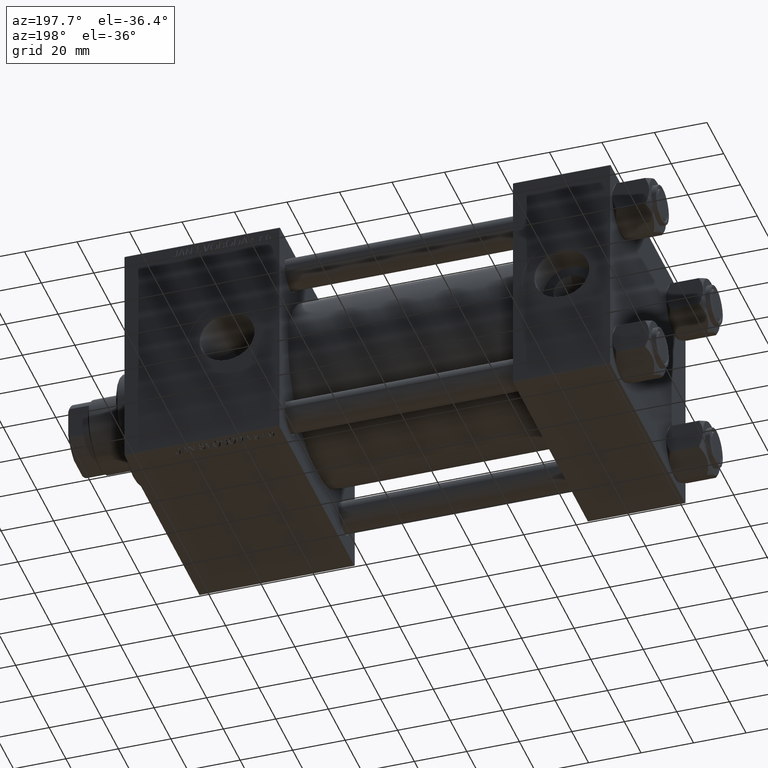
[diagram: clean part render]
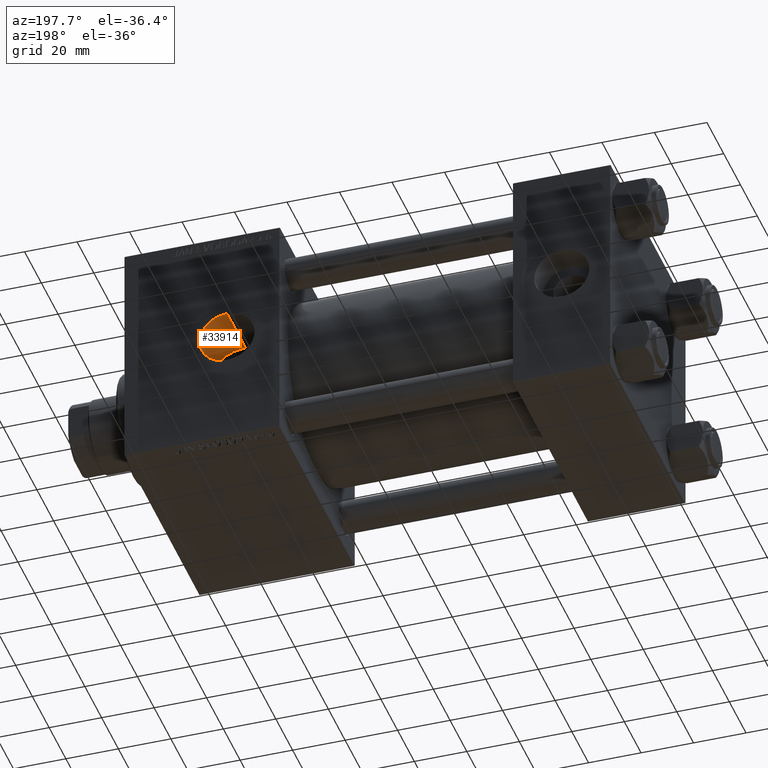
[diagram: same view with one face highlighted and labeled with its STEP entity id]
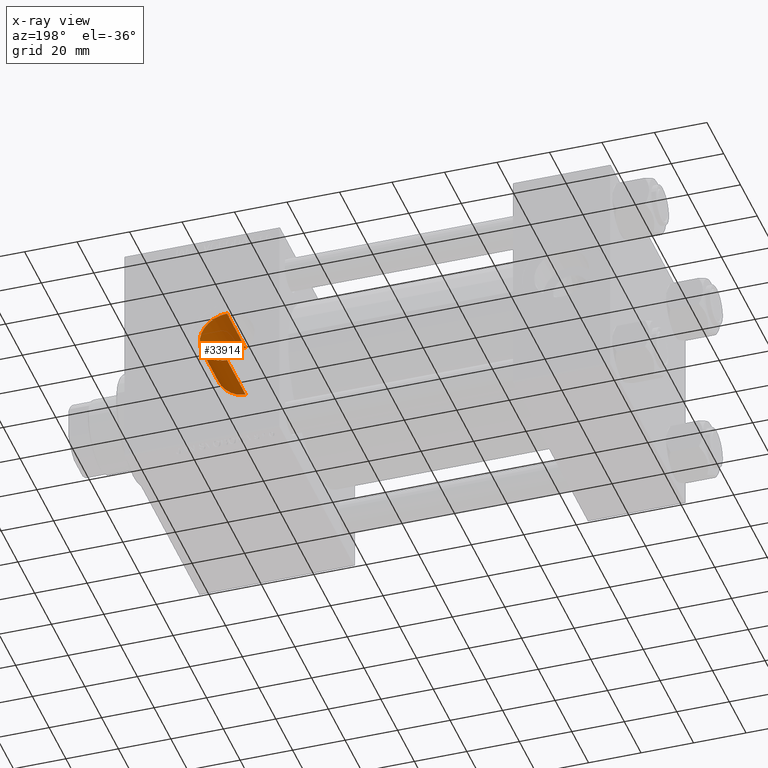
[diagram: x-ray of the same camera — body ghosted, the highlighted face saturated]
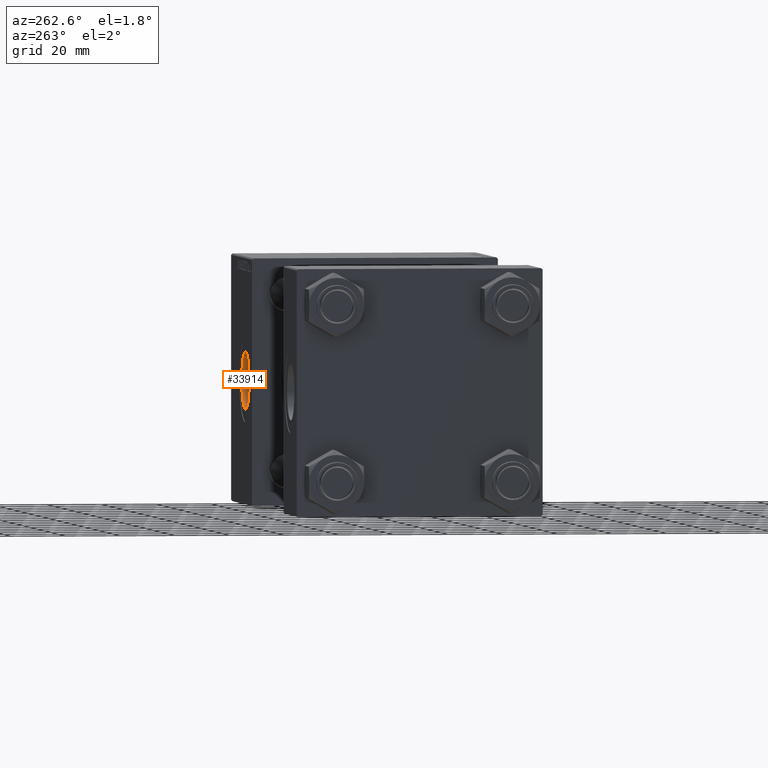
[diagram: same view with one face highlighted and labeled with its STEP entity id]
A machine part, auxiliary view. The second image highlights one B-rep face of the part: STEP entity #33914.
The next image is the same camera in x-ray: the body ghosted, the highlighted face saturated — about 0% of this face is hidden behind the body in this view.
A second angle (auxiliary view) of the same face is appended — the face is thin or edge-on in the first view.
In plain terms, the highlighted cylindrical surface (edge-blend (fillet) strip) has radius 10.48 mm, axis along (0, 1, 0).
Its self-contained STEP definition (entity closure, byte-faithful):
#666 = CARTESIAN_POINT ( 'NONE',  ( 149.0142847940010142, 22.88965506391803117, -10.05559815508268429 ) ) ;
#926 = CARTESIAN_POINT ( 'NONE',  ( 156.4210485436893805, 29.97924172559975275, -1.289340916902831147 ) ) ;
#1416 = ORIENTED_EDGE ( 'NONE', *, *, #46345, .F. ) ;
#1538 = CARTESIAN_POINT ( 'NONE',  ( 150.9753809948898038, 23.23488527341190490, 9.228541309191445663 ) ) ;
#1600 = VERTEX_POINT ( 'NONE', #31191 ) ;
#1994 = CARTESIAN_POINT ( 'NONE',  ( 146.0000000000000000, 44.80000000000000426, 10.47999999999998622 ) ) ;
#2286 = CARTESIAN_POINT ( 'NONE',  ( 154.3712186421444130, 24.18913309560350555, 6.333144320437556374 ) ) ;
#2754 = EDGE_CURVE ( 'NONE', #25891, #6803, #9377, .T. ) ;
#2822 = B_SPLINE_CURVE_WITH_KNOTS ( 'NONE', 3,
 ( #6603, #14225, #44470, #24937, #28989, #6348, #9399, #48277, #1538, #18040, #21870, #37102, #13709, #2286, #45230, #10405, #5597, #37361, #13463, #36344 ),
 .UNSPECIFIED., .F., .F.,
 ( 4, 2, 2, 2, 2, 2, 2, 2, 2, 4 ),
 ( 0.04777555843500057298, 0.04960278494382210079, 0.05143001145264363555, 0.05234362470705439946, 0.05325723796146516337, 0.05508446447028669118, 0.05691169097910821206, 0.05873891748792973294, 0.06056614399675125382, 0.06239337050557278164 ),
 .UNSPECIFIED. ) ;
#3253 = CARTESIAN_POINT ( 'NONE',  ( 156.1860373835923781, 24.87798601015179045, -2.540944180381794038 ) ) ;
#3324 = DIRECTION ( 'NONE',  ( -0.000000000000000000, 1.000000000000000000, -0.000000000000000000 ) ) ;
#3612 = DIRECTION ( 'NONE',  ( -0.000000000000000000, 1.000000000000000000, -0.000000000000000000 ) ) ;
#3923 = ORIENTED_EDGE ( 'NONE', *, *, #7619, .F. ) ;
#4479 = CARTESIAN_POINT ( 'NONE',  ( 147.5323102098026311, 22.74705995731304498, -10.37182038327441802 ) ) ;
#5597 = CARTESIAN_POINT ( 'NONE',  ( 155.5967018876781083, 24.64200291405538579, 4.254096972755011308 ) ) ;
#6348 = CARTESIAN_POINT ( 'NONE',  ( 149.8763894940811952, 23.02425611976456921, 9.741482359767376309 ) ) ;
#6387 = DIRECTION ( 'NONE',  ( 0.000000000000000000, 0.000000000000000000, 1.000000000000000000 ) ) ;
#6603 = CARTESIAN_POINT ( 'NONE',  ( 146.0000000000000000, 22.69734786269092908, 10.47999999999998622 ) ) ;
#6803 = VERTEX_POINT ( 'NONE', #1994 ) ;
#6850 = CARTESIAN_POINT ( 'NONE',  ( 146.0000000000000000, -29.64191626734002938, -10.47999999999998622 ) ) ;
#7050 = CARTESIAN_POINT ( 'NONE',  ( 156.0210743422585438, 24.81034816119848330, -3.126242148223932649 ) ) ;
#7619 = EDGE_CURVE ( 'NONE', #25891, #32924, #2822, .T. ) ;
#7684 = DIRECTION ( 'NONE',  ( 0.000000000000000000, -1.000000000000000000, 0.000000000000000000 ) ) ;
#8743 = CARTESIAN_POINT ( 'NONE',  ( 146.0000000000000000, 44.80000000000000426, 0.000000000000000000 ) ) ;
#8765 = CARTESIAN_POINT ( 'NONE',  ( 150.9708057090665250, 23.23390972285158185, -9.230989781872743549 ) ) ;
#8780 = CARTESIAN_POINT ( 'NONE',  ( 156.2999999999999829, 29.93759509379469819, -1.934011375354246276 ) ) ;
#9377 = LINE ( 'NONE', #16521, #34046 ) ;
#9399 = CARTESIAN_POINT ( 'NONE',  ( 150.1594229704400050, 23.07374768723454395, 9.623999275545168430 ) ) ;
#9587 = AXIS2_PLACEMENT_3D ( 'NONE', #8743, #43577, #28346 ) ;
#10375 = VERTEX_POINT ( 'NONE', #18363 ) ;
#10405 = CARTESIAN_POINT ( 'NONE',  ( 155.3365885758777267, 24.54097123568320882, 4.798722814978416906 ) ) ;
#10706 = CARTESIAN_POINT ( 'NONE',  ( 146.0000000000000000, -29.64191626734002938, 0.000000000000000000 ) ) ;
#11527 = VERTEX_POINT ( 'NONE', #49090 ) ;
#11764 = CARTESIAN_POINT ( 'NONE',  ( 146.0000000000000000, 22.69734786269092908, 10.47999999999998622 ) ) ;
#12098 = CARTESIAN_POINT ( 'NONE',  ( 146.6184503203334089, 22.70371650711280154, -10.46623830854439596 ) ) ;
#13082 = CARTESIAN_POINT ( 'NONE',  ( 147.2299806015979300, 22.72859684883632525, -10.41209742797557603 ) ) ;
#13456 = DIRECTION ( 'NONE',  ( -0.000000000000000000, 1.000000000000000000, -0.000000000000000000 ) ) ;
#13463 = CARTESIAN_POINT ( 'NONE',  ( 156.1860905014694936, 24.87800796049819851, 2.540661289525187883 ) ) ;
#13709 = CARTESIAN_POINT ( 'NONE',  ( 153.5987668480131276, 23.93278328930207977, 7.241875511745201166 ) ) ;
#14225 = CARTESIAN_POINT ( 'NONE',  ( 146.6110601447643944, 22.69734786269092552, 10.47999999999998622 ) ) ;
#14936 = CARTESIAN_POINT ( 'NONE',  ( 154.7165790327873651, 24.31185381307016158, -5.849757798485074822 ) ) ;
#15258 = CARTESIAN_POINT ( 'NONE',  ( 156.2999999999999829, -29.64191626734002938, -1.934011375354246276 ) ) ;
#16161 = CARTESIAN_POINT ( 'NONE',  ( 146.3076896963079605, 22.69734786269091131, -10.47999999999998799 ) ) ;
#16516 = ORIENTED_EDGE ( 'NONE', *, *, #2754, .T. ) ;
#16521 = CARTESIAN_POINT ( 'NONE',  ( 146.0000000000000000, -29.64191626734002938, 10.47999999999998622 ) ) ;
#16665 = CARTESIAN_POINT ( 'NONE',  ( 153.5841984343152262, 23.93007535684159848, -7.238810305119394606 ) ) ;
#17134 = CARTESIAN_POINT ( 'NONE',  ( 156.2999999999999829, 29.93759509379469819, -1.934011375354246276 ) ) ;
#18040 = CARTESIAN_POINT ( 'NONE',  ( 151.7549989371403569, 23.41010728859863477, 8.778972046462296674 ) ) ;
#18363 = CARTESIAN_POINT ( 'NONE',  ( 145.9999999999999432, 22.69734786269093618, -10.48000000000000043 ) ) ;
#18936 = VERTEX_POINT ( 'NONE', #17134 ) ;
#20072 = CARTESIAN_POINT ( 'NONE',  ( 156.2999999999999829, 24.92507973909011554, 1.934011375354246276 ) ) ;
#20726 = CARTESIAN_POINT ( 'NONE',  ( 150.7040979107195255, 23.17812935793411455, -9.369815470830934245 ) ) ;
#21045 = CARTESIAN_POINT ( 'NONE',  ( 156.2999999999999829, -29.64191626734002938, 1.934011375354246276 ) ) ;
#21253 = CARTESIAN_POINT ( 'NONE',  ( 156.2999999999999829, 29.93759509379469819, 1.934011375354246276 ) ) ;
#21357 = LINE ( 'NONE', #6850, #34324 ) ;
#21870 = CARTESIAN_POINT ( 'NONE',  ( 152.2463736098319487, 23.53697641551143604, 8.436658862434475381 ) ) ;
#22566 = CARTESIAN_POINT ( 'NONE',  ( 155.7018873513318340, 24.68373309296300633, -3.974293906804986509 ) ) ;
#24061 = CARTESIAN_POINT ( 'NONE',  ( 153.1575839127999927, 23.79830767432467908, -7.660902887767198521 ) ) ;
#24310 = CARTESIAN_POINT ( 'NONE',  ( 152.9332077102124572, 23.73162063118218867, -7.864568902139592588 ) ) ;
#24815 = CARTESIAN_POINT ( 'NONE',  ( 145.9999999999999432, 22.69734786269093618, -10.48000000000000043 ) ) ;
#24937 = CARTESIAN_POINT ( 'NONE',  ( 148.4335631959205273, 22.81958359536423586, 10.21177388410807652 ) ) ;
#25356 = EDGE_CURVE ( 'NONE', #11527, #18936, #40741, .T. ) ;
#25869 = ORIENTED_EDGE ( 'NONE', *, *, #47633, .F. ) ;
#25891 = VERTEX_POINT ( 'NONE', #11764 ) ;
#26650 = CARTESIAN_POINT ( 'NONE',  ( 155.1791453405796801, 24.48276497113433692, -5.066132143998561155 ) ) ;
#27386 = ORIENTED_EDGE ( 'NONE', *, *, #34604, .T. ) ;
#28346 = DIRECTION ( 'NONE',  ( 0.000000000000000000, 0.000000000000000000, 1.000000000000000000 ) ) ;
#28989 = CARTESIAN_POINT ( 'NONE',  ( 149.0193213176865754, 22.89033417524106184, 10.05405366419393509 ) ) ;
#29878 = ORIENTED_EDGE ( 'NONE', *, *, #25356, .F. ) ;
#31191 = CARTESIAN_POINT ( 'NONE',  ( 156.2999999999999829, 24.92507973909011554, -1.934011375354246276 ) ) ;
#31679 = CARTESIAN_POINT ( 'NONE',  ( 149.8722702370924651, 23.02355914754543775, -9.743129116453783212 ) ) ;
#31927 = CARTESIAN_POINT ( 'NONE',  ( 150.1555850499988765, 23.07305854210198603, -9.625647614747022018 ) ) ;
#32924 = VERTEX_POINT ( 'NONE', #20072 ) ;
#33842 = FACE_OUTER_BOUND ( 'NONE', #50094, .T. ) ;
#33914 = ADVANCED_FACE ( 'NONE', ( #33842 ), #41462, .F. ) ;
#33957 = CIRCLE ( 'NONE', #9587, 10.47999999999998622 ) ;
#34046 = VECTOR ( 'NONE', #36322, 1000.000000000000000 ) ;
#34324 = VECTOR ( 'NONE', #13456, 1000.000000000000000 ) ;
#34604 = EDGE_CURVE ( 'NONE', #6803, #42162, #33957, .T. ) ;
#34748 = CARTESIAN_POINT ( 'NONE',  ( 156.2999999999999829, 24.92507973909011554, -1.934011375354246276 ) ) ;
#35974 = CARTESIAN_POINT ( 'NONE',  ( 152.2397153213853187, 23.53522980150269106, -8.441445692881798024 ) ) ;
#36322 = DIRECTION ( 'NONE',  ( -0.000000000000000000, 1.000000000000000000, -0.000000000000000000 ) ) ;
#36344 = CARTESIAN_POINT ( 'NONE',  ( 156.2999999999999829, 24.92507973909011554, 1.934011375354246276 ) ) ;
#37102 = CARTESIAN_POINT ( 'NONE',  ( 153.1732750394715765, 23.79974685375126953, 7.664106030242019862 ) ) ;
#37361 = CARTESIAN_POINT ( 'NONE',  ( 156.0213090755693770, 24.81044651116622290, 3.125282801040263347 ) ) ;
#38050 = CARTESIAN_POINT ( 'NONE',  ( 155.5834545747851791, 24.63732295853902698, -4.251964245000961817 ) ) ;
#38128 = LINE ( 'NONE', #15258, #43001 ) ;
#38498 = EDGE_CURVE ( 'NONE', #1600, #18936, #38128, .T. ) ;
#39529 = CARTESIAN_POINT ( 'NONE',  ( 148.4293865525149272, 22.81920611046002989, -10.21261041782896939 ) ) ;
#40021 = VECTOR ( 'NONE', #7684, 1000.000000000000000 ) ;
#40283 = CARTESIAN_POINT ( 'NONE',  ( 153.7875165981256487, 23.99545103971815507, -7.019557294124506797 ) ) ;
#40741 = B_SPLINE_CURVE_WITH_KNOTS ( 'NONE', 3,
 ( #21253, #44111, #44613, #926, #8780 ),
 .UNSPECIFIED., .F., .F.,
 ( 4, 1, 4 ),
 ( 0.000000000000000000, 0.001934011375354246186, 0.003868022750708492372 ),
 .UNSPECIFIED. ) ;
#41068 = ORIENTED_EDGE ( 'NONE', *, *, #38498, .T. ) ;
#41462 = CYLINDRICAL_SURFACE ( 'NONE', #48626, 10.47999999999998622 ) ;
#42122 = CARTESIAN_POINT ( 'NONE',  ( 154.3682082231354968, 24.18807830728737684, -6.337214579021512861 ) ) ;
#42162 = VERTEX_POINT ( 'NONE', #49817 ) ;
#43000 = LINE ( 'NONE', #21045, #40021 ) ;
#43001 = VECTOR ( 'NONE', #3324, 1000.000000000000000 ) ;
#43577 = DIRECTION ( 'NONE',  ( 0.000000000000000000, 1.000000000000000000, 0.000000000000000000 ) ) ;
#44111 = CARTESIAN_POINT ( 'NONE',  ( 156.4210485436893237, 29.97924172559974565, 1.289340916902830925 ) ) ;
#44470 = CARTESIAN_POINT ( 'NONE',  ( 147.2322774918956441, 22.72288875680884601, 10.42516416521381828 ) ) ;
#44613 = CARTESIAN_POINT ( 'NONE',  ( 156.5389514563106275, 30.02075827440025080, -2.168404344971008868E-16 ) ) ;
#45230 = CARTESIAN_POINT ( 'NONE',  ( 154.7194189641794821, 24.31287004917998829, 5.845627410065716845 ) ) ;
#46345 = EDGE_CURVE ( 'NONE', #10375, #42162, #21357, .T. ) ;
#46909 = CARTESIAN_POINT ( 'NONE',  ( 151.7493281379708492, 23.40872872428953499, -8.782616521472780491 ) ) ;
#46923 = ORIENTED_EDGE ( 'NONE', *, *, #47399, .T. ) ;
#47399 = EDGE_CURVE ( 'NONE', #11527, #32924, #43000, .T. ) ;
#47633 = EDGE_CURVE ( 'NONE', #1600, #10375, #48307, .T. ) ;
#48277 = CARTESIAN_POINT ( 'NONE',  ( 150.7083723491581679, 23.17899486745391613, 9.367678011353742562 ) ) ;
#48307 = B_SPLINE_CURVE_WITH_KNOTS ( 'NONE', 3,
 ( #34748, #3253, #7050, #22566, #38050, #49732, #26650, #14936, #42122, #40283, #16665, #24061, #24310, #35974, #46909, #8765, #20726, #31927, #31679, #666, #39529, #4479, #13082, #12098, #16161, #24815 ),
 .UNSPECIFIED., .F., .F.,
 ( 4, 2, 2, 2, 2, 2, 2, 2, 2, 2, 2, 2, 4 ),
 ( 0.000000000000000000, 0.001829777386401790218, 0.002744666079602698337, 0.003659554772803606457, 0.005489332159205420961, 0.006404220852406329080, 0.007319109545607237199, 0.009148886932009051703, 0.01006377562520999712, 0.01097866431841093907, 0.01280844170481274837, 0.01372333039801365388, 0.01463821909121455940 ),
 .UNSPECIFIED. ) ;
#48626 = AXIS2_PLACEMENT_3D ( 'NONE', #10706, #3612, #6387 ) ;
#49090 = CARTESIAN_POINT ( 'NONE',  ( 156.2999999999999829, 29.93759509379469819, 1.934011375354246276 ) ) ;
#49732 = CARTESIAN_POINT ( 'NONE',  ( 155.3223998280050751, 24.53695619936534911, -4.797360000515542566 ) ) ;
#49817 = CARTESIAN_POINT ( 'NONE',  ( 146.0000000000000000, 44.80000000000000426, -10.47999999999998622 ) ) ;
#50094 = EDGE_LOOP ( 'NONE', ( #1416, #25869, #41068, #29878, #46923, #3923, #16516, #27386 ) ) ;